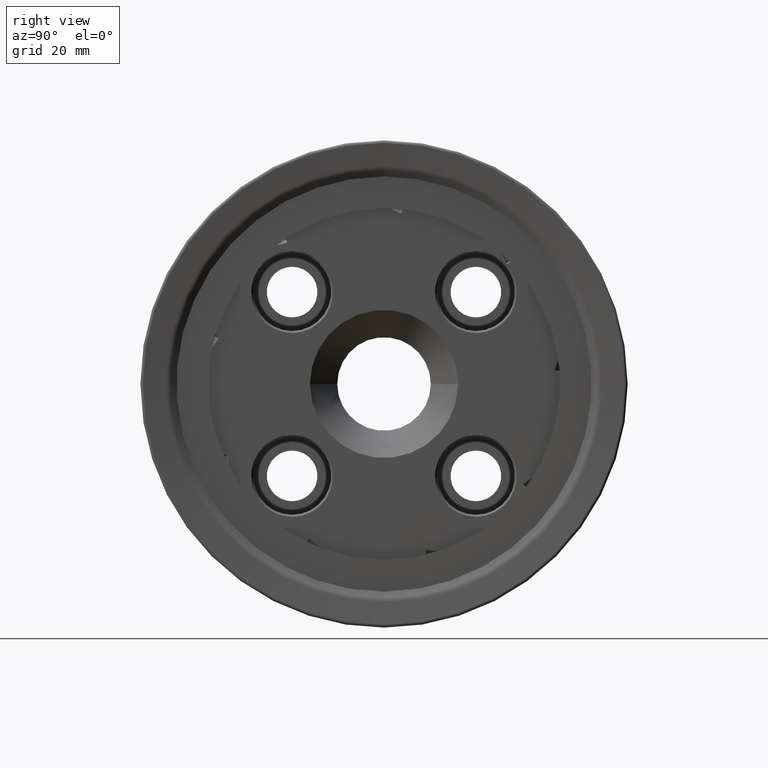
[diagram: clean part render]
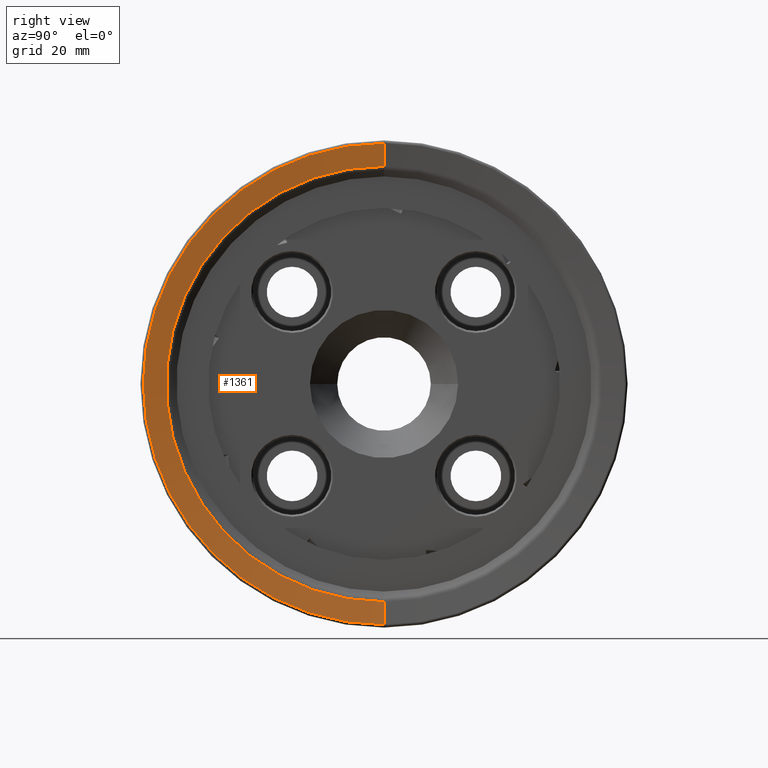
[diagram: same view with one face highlighted and labeled with its STEP entity id]
A machine part, right view. The second image highlights one B-rep face of the part: STEP entity #1361.
In plain terms, the highlighted conical surface has half-angle 84.029 deg.
Its self-contained STEP definition (entity closure, byte-faithful):
#755 = ORIENTED_EDGE ( 'NONE', *, *, #1206, .T. ) ;
#888 = ORIENTED_EDGE ( 'NONE', *, *, #1155, .T. ) ;
#902 = ORIENTED_EDGE ( 'NONE', *, *, #1212, .F. ) ;
#931 = ORIENTED_EDGE ( 'NONE', *, *, #1218, .F. ) ;
#1154 = AXIS2_PLACEMENT_3D ( 'NONE', #16679, #16678, #16847 ) ;
#1155 = EDGE_CURVE ( 'NONE', #16606, #16607, #8593, .T. ) ;
#1206 = EDGE_CURVE ( 'NONE', #16609, #16606, #8610, .T. ) ;
#1212 = EDGE_CURVE ( 'NONE', #16609, #16610, #8624, .T. ) ;
#1218 = EDGE_CURVE ( 'NONE', #16610, #16607, #8625, .T. ) ;
#1361 = ADVANCED_FACE ( 'NONE', ( #8692 ), #8691, .F. ) ;
#1765 = DIRECTION ( 'NONE',  ( 0.0000000000000000000, 0.0000000000000000000, -1.000000000000000000 ) ) ;
#1779 = DIRECTION ( 'NONE',  ( 1.000000000000000000, -0.0000000000000000000, -0.0000000000000000000 ) ) ;
#1780 = CARTESIAN_POINT ( 'NONE',  ( 1.746340405032740700, 0.0000000000000000000, 0.0000000000000000000 ) ) ;
#7732 = EDGE_LOOP ( 'NONE', ( #902, #755, #888, #931 ) ) ;
#7795 = CARTESIAN_POINT ( 'NONE',  ( 1.746340405032740700, 7.562841122689600200E-015, 61.75528428241631200 ) ) ;
#7797 = CARTESIAN_POINT ( 'NONE',  ( 1.746340405032740700, 0.0000000000000000000, -61.75528428241631200 ) ) ;
#7801 = CARTESIAN_POINT ( 'NONE',  ( 1.128420704829543400, 6.839331110742206500E-015, 55.84737669264325900 ) ) ;
#7802 = CARTESIAN_POINT ( 'NONE',  ( 1.128420704829543400, 0.0000000000000000000, -55.84737669264325900 ) ) ;
#8593 = CIRCLE ( 'NONE', #1154, 61.75528428241631200 ) ;
#8610 = LINE ( 'NONE', #15583, #8616 ) ;
#8616 = VECTOR ( 'NONE', #15515, 999.9999999999998900 ) ;
#8623 = VECTOR ( 'NONE', #15554, 999.9999999999998900 ) ;
#8624 = CIRCLE ( 'NONE', #9587, 55.84737669264325900 ) ;
#8625 = LINE ( 'NONE', #15609, #8623 ) ;
#8691 = CONICAL_SURFACE ( 'NONE', #9624, 61.75528428241631200, 1.466583265627646100 ) ;
#8692 = FACE_OUTER_BOUND ( 'NONE', #7732, .T. ) ;
#9587 = AXIS2_PLACEMENT_3D ( 'NONE', #15582, #15598, #15521 ) ;
#9624 = AXIS2_PLACEMENT_3D ( 'NONE', #1780, #1779, #1765 ) ;
#15515 = DIRECTION ( 'NONE',  ( 0.1040245316410405700, 1.218002761615815600E-016, 0.9945747316400424000 ) ) ;
#15521 = DIRECTION ( 'NONE',  ( 0.0000000000000000000, 0.0000000000000000000, -1.000000000000000000 ) ) ;
#15554 = DIRECTION ( 'NONE',  ( 0.1040245316410405700, 0.0000000000000000000, -0.9945747316400424000 ) ) ;
#15582 = CARTESIAN_POINT ( 'NONE',  ( 1.128420704829543400, 0.0000000000000000000, 0.0000000000000000000 ) ) ;
#15583 = CARTESIAN_POINT ( 'NONE',  ( 1.746340405032740700, 7.562841122689600200E-015, 61.75528428241631200 ) ) ;
#15598 = DIRECTION ( 'NONE',  ( 1.000000000000000000, -0.0000000000000000000, -0.0000000000000000000 ) ) ;
#15609 = CARTESIAN_POINT ( 'NONE',  ( 1.746340405032740700, 0.0000000000000000000, -61.75528428241631200 ) ) ;
#16606 = VERTEX_POINT ( 'NONE', #7795 ) ;
#16607 = VERTEX_POINT ( 'NONE', #7797 ) ;
#16609 = VERTEX_POINT ( 'NONE', #7801 ) ;
#16610 = VERTEX_POINT ( 'NONE', #7802 ) ;
#16678 = DIRECTION ( 'NONE',  ( 1.000000000000000000, -0.0000000000000000000, -0.0000000000000000000 ) ) ;
#16679 = CARTESIAN_POINT ( 'NONE',  ( 1.746340405032740700, 0.0000000000000000000, 0.0000000000000000000 ) ) ;
#16847 = DIRECTION ( 'NONE',  ( 0.0000000000000000000, 0.0000000000000000000, -1.000000000000000000 ) ) ;